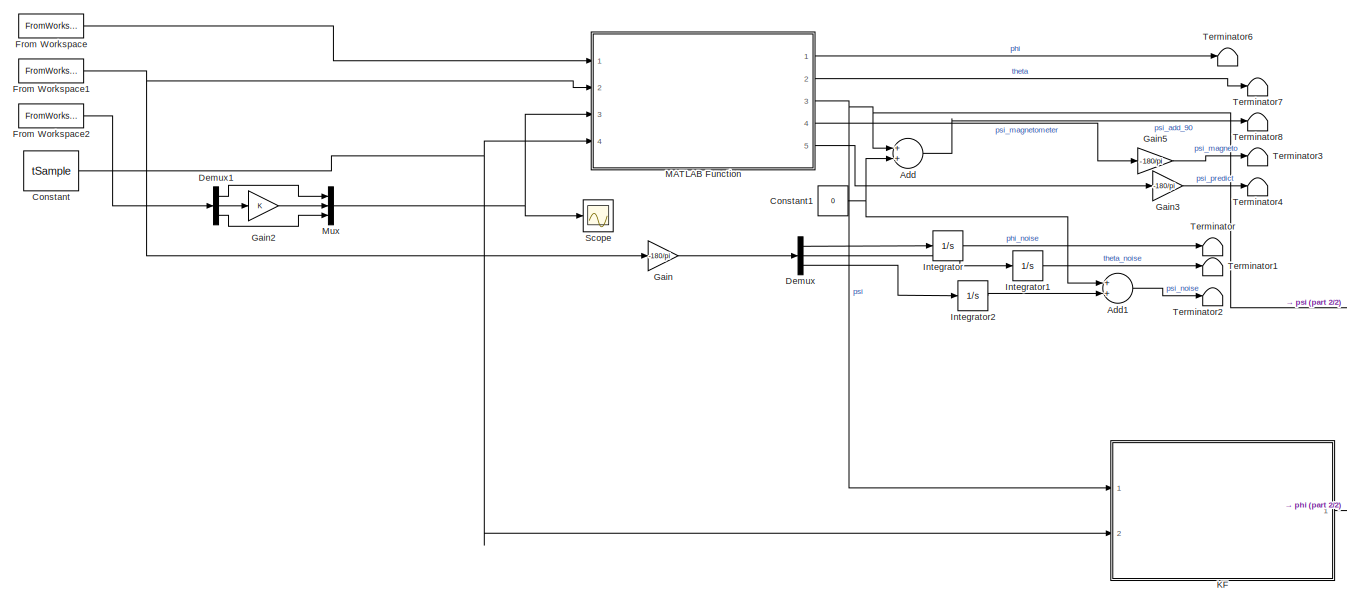
[diagram: root canvas - part 1/2, most of the canvas]
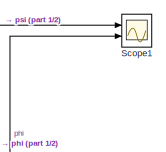
[diagram: root canvas - part 2/2, middle right region]
MODEL slx_acf3cca2f5dc
KIND model
CONFIG AbsTol = auto
CONFIG EnableMultiTasking = on
CONFIG FixedStep = tSample
CONFIG MaxStep = auto
CONFIG MinStep = auto
CONFIG PreLoadFcn = init
CONFIG RelTol = 1e-3
CONFIG SampleTimeConstraint = Unconstrained
CONFIG Solver = FixedStepAuto
CONFIG SolverName = FixedStepAuto
CONFIG StartTime = 0.0
CONFIG StopTime = 60
BLOCK [Sum] Add
  InputSameDT = off
  OutDataTypeStr = Inherit: Inherit via internal rule
  Ports = [2, 1]
  SaturateOnIntegerOverflow = off
BLOCK [Sum] Add1
  InputSameDT = off
  OutDataTypeStr = Inherit: Inherit via internal rule
  Ports = [2, 1]
  SaturateOnIntegerOverflow = off
BLOCK [Constant] Constant
  Value = tSample
BLOCK [Constant] Constant1
  Value = 0
BLOCK [Demux] Demux
  DisplayOption = bar
  Outputs = 3
  Ports = [1, 3]
BLOCK [Demux] Demux1
  DisplayOption = bar
  Outputs = 3
  Ports = [1, 3]
BLOCK [FromWorkspace] From Workspace
  Interpolate = off
  OutputAfterFinalValue = Setting to zero
  SampleTime = tSample
  VariableName = acc
  ZeroCross = on
BLOCK [FromWorkspace] From Workspace1
  Interpolate = off
  OutputAfterFinalValue = Setting to zero
  SampleTime = tSample
  VariableName = angVel
  ZeroCross = on
BLOCK [FromWorkspace] From Workspace2
  Interpolate = off
  OutputAfterFinalValue = Setting to zero
  SampleTime = tSample
  VariableName = magField
  ZeroCross = on
BLOCK [Gain] Gain
  Gain = -180/pi
  Multiplication = Matrix(K*u)
  OutDataTypeStr = Inherit: Inherit via internal rule
  ParamDataTypeStr = Inherit: Inherit via internal rule
  SaturateOnIntegerOverflow = off
BLOCK [Gain] Gain2
  OutDataTypeStr = Inherit: Inherit via internal rule
  ParamDataTypeStr = Inherit: Inherit via internal rule
  SaturateOnIntegerOverflow = off
BLOCK [Gain] Gain3
  Gain = -180/pi
  OutDataTypeStr = Inherit: Inherit via internal rule
  ParamDataTypeStr = Inherit: Inherit via internal rule
  SaturateOnIntegerOverflow = off
BLOCK [Gain] Gain5
  Gain = -180/pi
  OutDataTypeStr = Inherit: Inherit via internal rule
  ParamDataTypeStr = Inherit: Inherit via internal rule
  SaturateOnIntegerOverflow = off
BLOCK [Integrator] Integrator
  Ports = [1, 1]
BLOCK [Integrator] Integrator1
  Ports = [1, 1]
BLOCK [Integrator] Integrator2
  Ports = [1, 1]
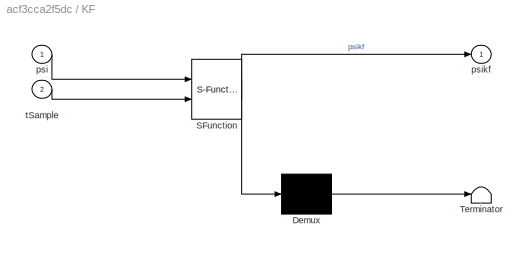
BLOCK [SubSystem] KF
  ErrorFcn = Stateflow.Translate.translate
  PermitHierarchicalResolution = ExplicitOnly
  Ports = [2, 1]
  RequestExecContextInheritance = off
  SFBlockType = MATLAB Function
  TreatAsAtomicUnit = on
BLOCK [Demux] KF/ Demux 
  Outputs = 1
  Ports = [1, 1]
BLOCK [S-Function] KF/ SFunction 
  EnableBusSupport = on
  FunctionName = sf_sfun
  PortCounts = [2 2]
  Ports = [2, 2]
  SFcnIsStateOwnerBlock = off
  SFunctionDeploymentMode = off
  Tag = Stateflow S-Function sdf_pi_test 1
BLOCK [Terminator] KF/ Terminator 
BLOCK [Inport] KF/psi
  IconDisplay = Port number
BLOCK [Outport] KF/psikf
  IconDisplay = Port number
BLOCK [Inport] KF/tSample
  IconDisplay = Port number
  Port = 2
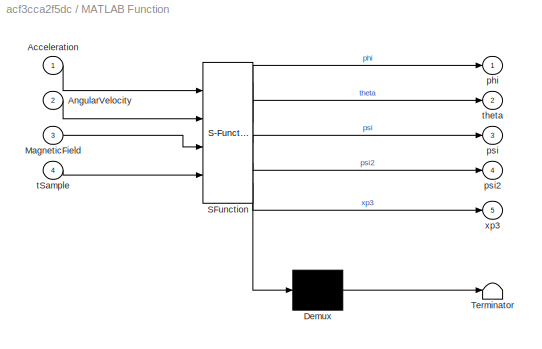
BLOCK [SubSystem] MATLAB Function
  ErrorFcn = Stateflow.Translate.translate
  PermitHierarchicalResolution = ExplicitOnly
  Ports = [4, 5]
  RequestExecContextInheritance = off
  SFBlockType = MATLAB Function
  TreatAsAtomicUnit = on
BLOCK [Demux] MATLAB Function/ Demux 
  Outputs = 1
  Ports = [1, 1]
BLOCK [S-Function] MATLAB Function/ SFunction 
  EnableBusSupport = on
  FunctionName = sf_sfun
  PortCounts = [4 6]
  Ports = [4, 6]
  SFcnIsStateOwnerBlock = off
  SFunctionDeploymentMode = off
  Tag = Stateflow S-Function sdf_pi_test 2
BLOCK [Terminator] MATLAB Function/ Terminator 
BLOCK [Inport] MATLAB Function/Acceleration
  IconDisplay = Port number
BLOCK [Inport] MATLAB Function/AngularVelocity
  IconDisplay = Port number
  Port = 2
BLOCK [Inport] MATLAB Function/MagneticField
  IconDisplay = Port number
  Port = 3
BLOCK [Outport] MATLAB Function/phi
  IconDisplay = Port number
BLOCK [Outport] MATLAB Function/psi
  IconDisplay = Port number
  Port = 3
BLOCK [Outport] MATLAB Function/psi2
  IconDisplay = Port number
  Port = 4
BLOCK [Inport] MATLAB Function/tSample
  IconDisplay = Port number
  Port = 4
BLOCK [Outport] MATLAB Function/theta
  IconDisplay = Port number
  Port = 2
BLOCK [Outport] MATLAB Function/xp3
  IconDisplay = Port number
  Port = 5
BLOCK [Mux] Mux
  DisplayOption = bar
  Inputs = 3
  Ports = [3, 1]
BLOCK [Scope] Scope
  Floating = off
  NumInputPorts = 1
  Ports = [1]
  ScopeSpecificationString = Simulink.scopes.TimeScopeBlockCfg('CurrentConfiguration', extmgr.ConfigurationSet(extmgr.Configuration('Core','General UI',true),extmgr.Configuration('Core','Source UI',true),extmgr.Configuration('Sources','WiredSimulink',true),extmgr.Configuration('Visuals','Time Domain',true,'SerializedDisplays',{struct('MinYLimReal','-57.08466','MaxYLimReal','59.4162','YLabelReal','','MinYLimMag','0.00000','Max...<+1349ch>
BLOCK [Scope] Scope1
  Floating = off
  NumInputPorts = 2
  Ports = [2]
  ScopeSpecificationString = Simulink.scopes.TimeScopeBlockCfg('CurrentConfiguration', extmgr.ConfigurationSet(extmgr.Configuration('Core','General UI',true),extmgr.Configuration('Core','Source UI',true),extmgr.Configuration('Sources','WiredSimulink',true,'DataLoggingVariableName','ScopeData1'),extmgr.Configuration('Visuals','Time Domain',true,'SerializedDisplays',{struct('MinYLimReal','-404.27678','MaxYLimReal','62.57089','Y...<+1380ch>
BLOCK [Terminator] Terminator
BLOCK [Terminator] Terminator1
BLOCK [Terminator] Terminator2
BLOCK [Terminator] Terminator3
BLOCK [Terminator] Terminator4
BLOCK [Terminator] Terminator6
BLOCK [Terminator] Terminator7
BLOCK [Terminator] Terminator8
LINE Add1:1 -> Terminator2:1
LINE Add:1 -> Terminator8:1
NET Constant1:1 -> Add1:1, Add:2
NET Constant:1 -> KF:2, MATLAB Function:4
LINE Demux1:1 -> Mux:1
LINE Demux1:2 -> Gain2:1
LINE Demux1:3 -> Mux:3
LINE Demux:1 -> Integrator:1
LINE Demux:2 -> Integrator1:1
LINE Demux:3 -> Integrator2:1
NET From Workspace1:1 -> Gain:1, MATLAB Function:2
LINE From Workspace2:1 -> Demux1:1
LINE From Workspace:1 -> MATLAB Function:1
LINE Gain2:1 -> Mux:2
LINE Gain3:1 -> Terminator4:1
LINE Gain5:1 -> Terminator3:1
LINE Gain:1 -> Demux:1
LINE Integrator1:1 -> Terminator1:1
LINE Integrator2:1 -> Add1:2
LINE Integrator:1 -> Terminator:1
LINE KF:1 -> Scope1:2
LINE MATLAB Function:1 -> Terminator6:1
LINE MATLAB Function:2 -> Terminator7:1
NET MATLAB Function:3 -> Add:1, KF:1, Scope1:1
LINE MATLAB Function:4 -> Gain5:1
LINE MATLAB Function:5 -> Gain3:1
NET Mux:1 -> MATLAB Function:3, Scope:1
note: NET lines group one-source signal fan-out (src -> all destinations, sorted); 1:1 wires keep LINE
CHART KF states=1 transitions=1
  STATE_LABEL 'eML_blk_kernel()'
  STATE_LABEL "SCRIPT:\nfunction psikf  = fcn(psi,tSample)\n\npersistent x_dach P Q R C I A_d A\n\npersistent firstRun\n\nif isempty(firstRun)\n    \n  firstRun = 1;\n  \n    I=eye(2);\n\n    A=[0 1;0 0];\n    \n    A_d=expm(A*tSample);\n    \n    C=[1 0];\n\n    P = 0.01*I;\n\n\n    Q=0.1*I;\n\n    R=10;\n    \n    x_dach = [psi 0]'; % Startwerte phi theta psi\n\nend\n\n\n%% Kalman Filter\n\nxp = A_d*x_dach;\n\nPp = A_d*P*A_d' + Q;    \n\nK = Pp*C...<+94ch>"
CHART MATLAB Function states=1 transitions=1
  STATE_LABEL 'eML_blk_kernel()'
  STATE_LABEL "SCRIPT:\nfunction [phi,theta,psi,psi2,xp3] = fcn(Acceleration,AngularVelocity,MagneticField,tSample)\n\n\npersistent x_dach P Q R C I\n\npersistent firstRun\n\nif isempty(firstRun)\n   firstRun = 1;\n  \n    I=eye(3);\n\n    C=I;\n\n    P = 0.01*I;\n\n% R=[100 0 0;\n%    0 100 0;\n%    0 0 300];\n% \nQ=[.0001 0 0;\n   0 .0001 0;\n   0 0 1];\n\nR=[1.9 0 0;\n    0 1.82 0;\n    0 0 1.1];\n\nx_dach = [0 0 0]'; % Startwerte phi th...<+1889ch>"
